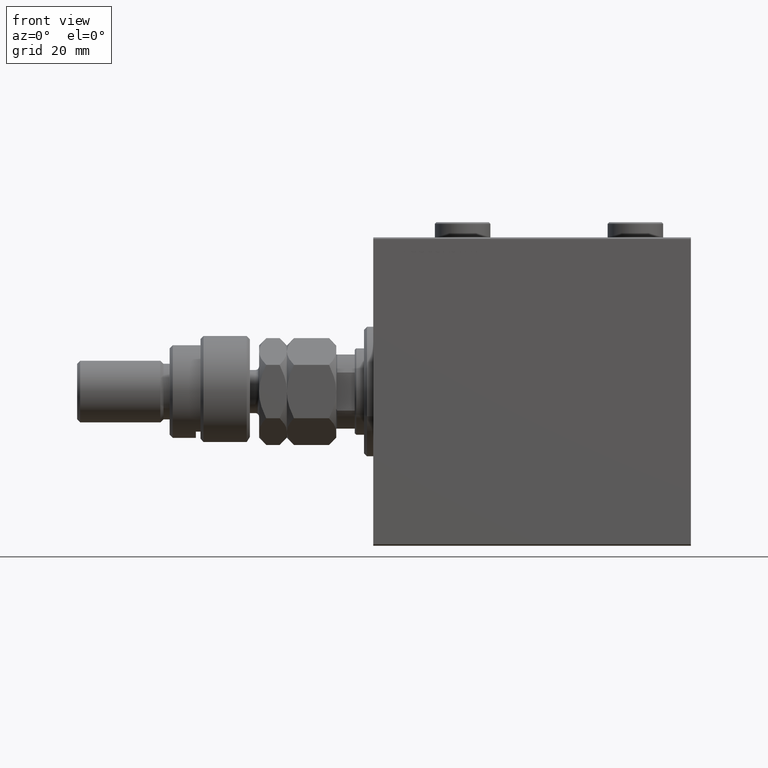
[diagram: clean part render]
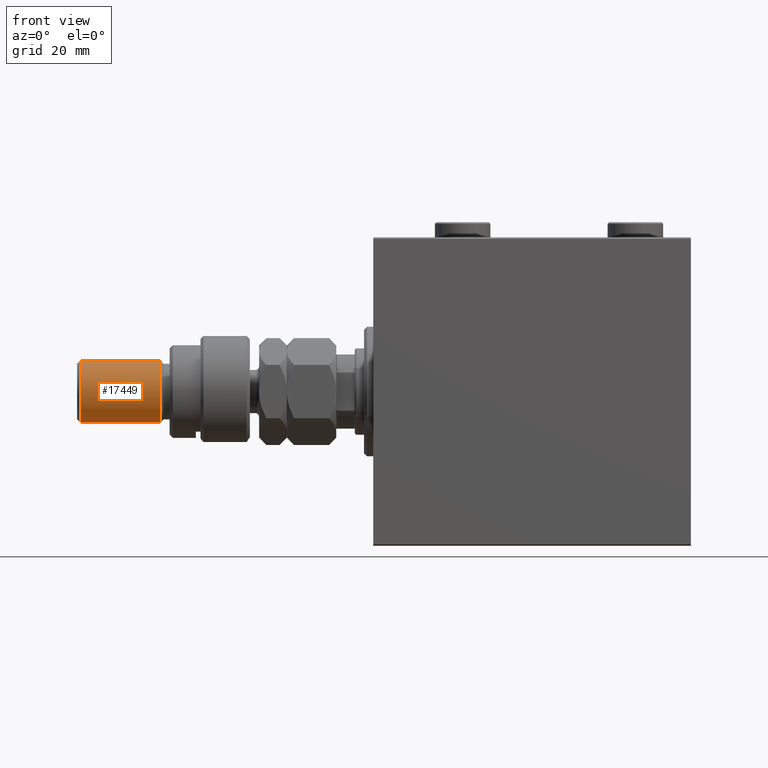
[diagram: same view with one face highlighted and labeled with its STEP entity id]
A machine part, front view. The second image highlights one B-rep face of the part: STEP entity #17449.
In plain terms, the highlighted cylindrical surface (edge-blend (fillet) strip) has radius 10 mm, axis along (1, -0, -0).
Its self-contained STEP definition (entity closure, byte-faithful):
#833 = DIRECTION ( 'NONE',  ( -0.000000000000000000, -0.000000000000000000, -1.000000000000000000 ) ) ;
#1781 = LINE ( 'NONE', #34665, #17086 ) ;
#2155 = CARTESIAN_POINT ( 'NONE',  ( 10.00000000000000000, 1.224646799147353256E-15, 29.00000000000000711 ) ) ;
#2845 = DIRECTION ( 'NONE',  ( 1.000000000000000000, 0.000000000000000000, 0.000000000000000000 ) ) ;
#8424 = VERTEX_POINT ( 'NONE', #45890 ) ;
#9566 = LINE ( 'NONE', #17349, #41963 ) ;
#10933 = ORIENTED_EDGE ( 'NONE', *, *, #25977, .T. ) ;
#14868 = VERTEX_POINT ( 'NONE', #38187 ) ;
#15943 = DIRECTION ( 'NONE',  ( 1.000000000000000000, 0.000000000000000000, 0.000000000000000000 ) ) ;
#16028 = EDGE_CURVE ( 'NONE', #17407, #44956, #31821, .T. ) ;
#17086 = VECTOR ( 'NONE', #833, 1000.000000000000000 ) ;
#17349 = CARTESIAN_POINT ( 'NONE',  ( 10.00000000000000000, 1.224646799147353256E-15, 56.00000000000000711 ) ) ;
#17407 = VERTEX_POINT ( 'NONE', #17861 ) ;
#17449 = ADVANCED_FACE ( 'NONE', ( #18101 ), #43198, .T. ) ;
#17861 = CARTESIAN_POINT ( 'NONE',  ( -10.00000000000000000, 0.000000000000000000, 29.00000000000000711 ) ) ;
#18101 = FACE_OUTER_BOUND ( 'NONE', #33310, .T. ) ;
#18647 = AXIS2_PLACEMENT_3D ( 'NONE', #32971, #28821, #32001 ) ;
#19120 = DIRECTION ( 'NONE',  ( 0.000000000000000000, 0.000000000000000000, -1.000000000000000000 ) ) ;
#19538 = ORIENTED_EDGE ( 'NONE', *, *, #37292, .T. ) ;
#20936 = AXIS2_PLACEMENT_3D ( 'NONE', #36210, #47903, #2845 ) ;
#21121 = EDGE_CURVE ( 'NONE', #8424, #44956, #9566, .T. ) ;
#25800 = CIRCLE ( 'NONE', #32020, 10.00000000000000000 ) ;
#25977 = EDGE_CURVE ( 'NONE', #8424, #14868, #25800, .T. ) ;
#26420 = CARTESIAN_POINT ( 'NONE',  ( 0.000000000000000000, 0.000000000000000000, 54.99999999999998579 ) ) ;
#28821 = DIRECTION ( 'NONE',  ( -0.000000000000000000, -0.000000000000000000, -1.000000000000000000 ) ) ;
#31727 = DIRECTION ( 'NONE',  ( -0.000000000000000000, -0.000000000000000000, -1.000000000000000000 ) ) ;
#31821 = CIRCLE ( 'NONE', #20936, 10.00000000000000000 ) ;
#32001 = DIRECTION ( 'NONE',  ( -1.000000000000000000, 0.000000000000000000, 0.000000000000000000 ) ) ;
#32020 = AXIS2_PLACEMENT_3D ( 'NONE', #26420, #19120, #15943 ) ;
#32971 = CARTESIAN_POINT ( 'NONE',  ( 0.000000000000000000, 0.000000000000000000, 56.00000000000000711 ) ) ;
#33310 = EDGE_LOOP ( 'NONE', ( #44464, #10933, #19538, #44069 ) ) ;
#34665 = CARTESIAN_POINT ( 'NONE',  ( -10.00000000000000000, 0.000000000000000000, 56.00000000000000711 ) ) ;
#36210 = CARTESIAN_POINT ( 'NONE',  ( 0.000000000000000000, 0.000000000000000000, 29.00000000000000711 ) ) ;
#37292 = EDGE_CURVE ( 'NONE', #14868, #17407, #1781, .T. ) ;
#38187 = CARTESIAN_POINT ( 'NONE',  ( -10.00000000000000000, 0.000000000000000000, 54.99999999999998579 ) ) ;
#41963 = VECTOR ( 'NONE', #31727, 1000.000000000000000 ) ;
#43198 = CYLINDRICAL_SURFACE ( 'NONE', #18647, 10.00000000000000000 ) ;
#44069 = ORIENTED_EDGE ( 'NONE', *, *, #16028, .T. ) ;
#44464 = ORIENTED_EDGE ( 'NONE', *, *, #21121, .F. ) ;
#44956 = VERTEX_POINT ( 'NONE', #2155 ) ;
#45890 = CARTESIAN_POINT ( 'NONE',  ( 10.00000000000000000, 1.224646799147353256E-15, 54.99999999999998579 ) ) ;
#47903 = DIRECTION ( 'NONE',  ( -0.000000000000000000, -0.000000000000000000, 1.000000000000000000 ) ) ;